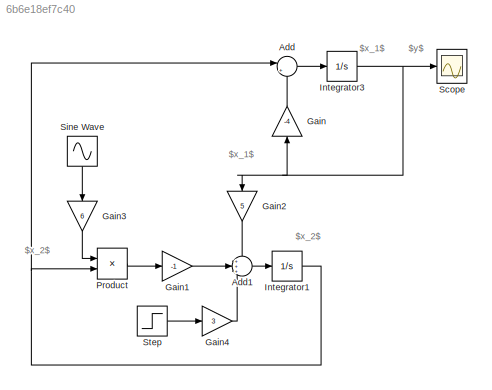
MODEL slx_6b6e18ef7c40
KIND model
CONFIG AbsTol = auto
CONFIG EnableMultiTasking = off
CONFIG FixedStep = auto
CONFIG MaxStep = auto
CONFIG MinStep = auto
CONFIG RelTol = 1e-3
CONFIG SampleTimeConstraint = Unconstrained
CONFIG SolverName = VariableStepAuto
CONFIG StartTime = 0.0
CONFIG StopTime = 10.0
BLOCK [Sum] Add
  Inputs = |++
BLOCK [Sum] Add1
  Inputs = +++
BLOCK [Gain] Gain
  Gain = -4
  NameLocation = right
BLOCK [Gain] Gain1
  Gain = -1
BLOCK [Gain] Gain2
  Gain = 5
  NameLocation = left
BLOCK [Gain] Gain3
  Gain = 6
  NameLocation = left
BLOCK [Gain] Gain4
  Gain = 3
BLOCK [Integrator] Integrator1
BLOCK [Integrator] Integrator3
BLOCK [Product] Product
BLOCK [Scope] Scope
  Floating = off
  NumInputPorts = 1
  ScopeSpecificationString = Simulink.scopes.TimeScopeBlockCfg('CurrentConfiguration', extmgr.ConfigurationSet(extmgr.Configuration('Core','General UI',true,'FigureColor',[0.972549019607843 0.972549019607843 0.972549019607843]),extmgr.Configuration('Core','Source UI',true),extmgr.Configuration('Sources','WiredSimulink',true,'SampleTime','0.001'),extmgr.Configuration('Visuals','Time Domain',true,'SerializedDisplays',{struct('M...<+1751ch>
BLOCK [Sin] Sine Wave
  NameLocation = left
  SampleTime = 0
BLOCK [Step] Step
  SampleTime = 0.001
ANNOTATION (root): $x_1$
ANNOTATION (root): $x_2$
ANNOTATION (root): $y$
LINE Add1:1 -> Integrator1:1
LINE Add:1 -> Integrator3:1
LINE Gain1:1 -> Add1:2
LINE Gain2:1 -> Add1:1
LINE Gain3:1 -> Product:1
LINE Gain4:1 -> Add1:3
LINE Gain:1 -> Add:2
NET Integrator1:1 -> Add:1, Product:2
NET Integrator3:1 -> Gain2:1, Gain:1, Scope:1
LINE Product:1 -> Gain1:1
LINE Sine Wave:1 -> Gain3:1
LINE Step:1 -> Gain4:1
note: NET lines group one-source signal fan-out (src -> all destinations, sorted); 1:1 wires keep LINE
